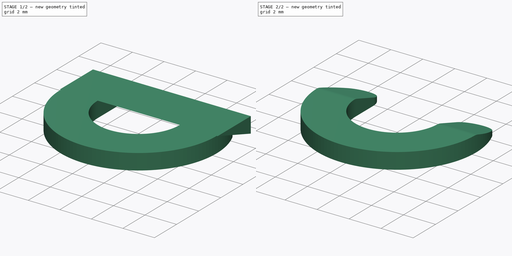
[diagram: build sequence overview — one tinted view per stage of 2, left to right]
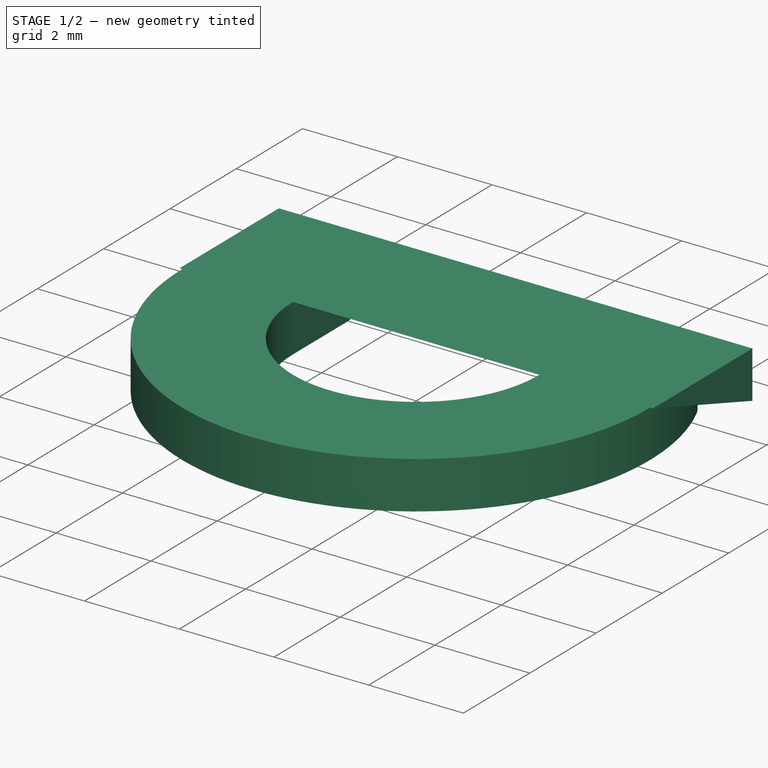
[diagram: stage 1 of 2 — iso view after this stage's code; geometry added in this stage tinted green]
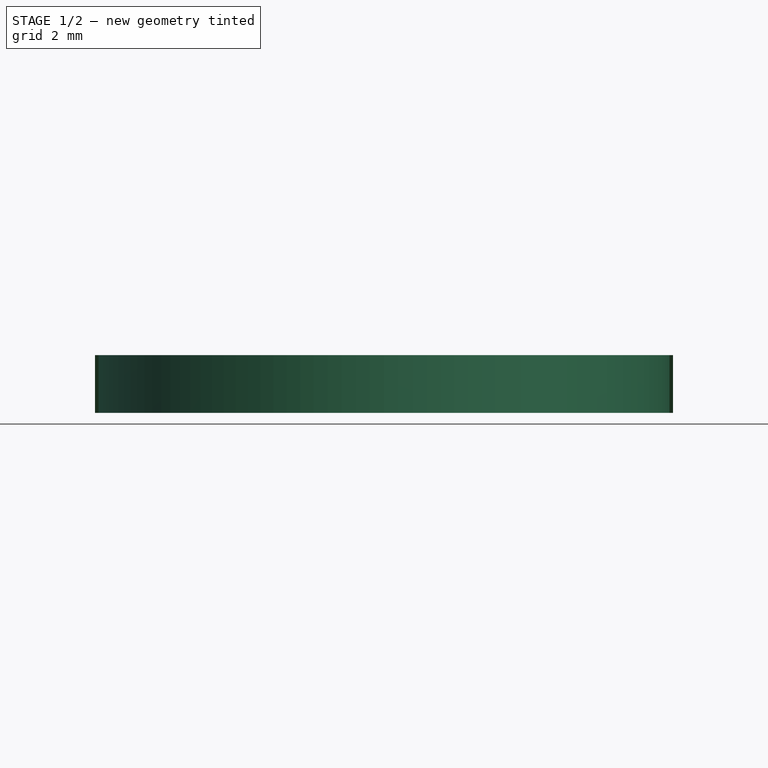
[diagram: stage 1 of 2 — front view after this stage's code; geometry added in this stage tinted green]
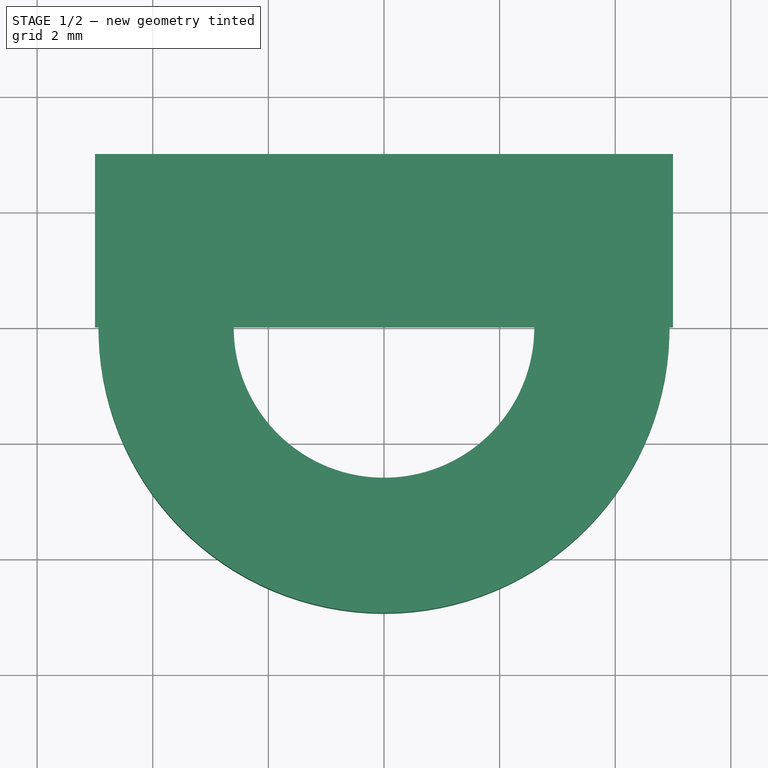
[diagram: stage 1 of 2 — top view after this stage's code; geometry added in this stage tinted green]
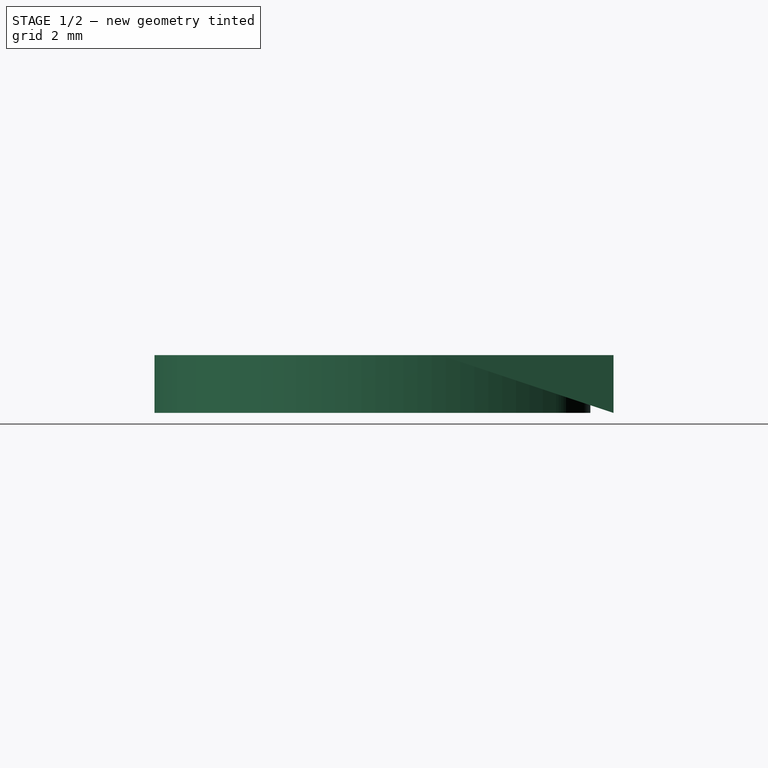
[diagram: stage 1 of 2 — right view after this stage's code; geometry added in this stage tinted green]
FCSTD DOCUMENT  (FreeCAD 0.16R6707 (Git))
Label: Bowden_Clip
License: All rights reserved
LicenseURL: http://en.wikipedia.org/wiki/All_rights_reserved
objects: Sketcher::SketchObject×2, PartDesign::Pad×2, Part::Cut×1, PartDesign::Fillet×1
note: 8 computed .brp shape members not serialized (recipe doc carries the construction recipe); baked Part::Feature solids carry a one-line shape summary decoded from their .brp

FEATURE [Sketcher::SketchObject] Sketch
  sketch-geometry (7):
    g0: ArcOfCircle CenterX=0 CenterY=0 CenterZ=0 NormalX=0 NormalY=0 NormalZ=1 Radius=4.93954 StartAngle=2.72337 EndAngle=6.70141
    g1: ArcOfCircle CenterX=0 CenterY=0 CenterZ=0 NormalX=0 NormalY=0 NormalZ=1 Radius=2.6 StartAngle=3.14159 EndAngle=6.28319
    g2: LineSegment StartX=-2.6 StartY=1.6 StartZ=0 EndX=-2.6 EndY=-3.3983e-08 EndZ=0
    g3: LineSegment StartX=2.6 StartY=1.60001 StartZ=0 EndX=2.6 EndY=-1.0542e-08 EndZ=0
    g4: ArcOfCircle CenterX=-3.6 CenterY=1.6 CenterZ=0 NormalX=0 NormalY=0 NormalZ=1 Radius=1 StartAngle=6.28318 EndAngle=9.00655
    g5: ArcOfCircle CenterX=3.6 CenterY=1.6 CenterZ=0 NormalX=0 NormalY=0 NormalZ=1 Radius=1 StartAngle=0.418232 EndAngle=3.14159
    g6: LineSegment [constr] StartX=-8 StartY=2.6 StartZ=0 EndX=8 EndY=2.6 EndZ=0
  constraints (23):
    c: Coincident(g0,g-1)
    c: Coincident(g1,g-1)
    c: Coincident(g2,g1)
    c: Coincident(g3,g1)
    c: Tangent(g3,g1)
    c: Tangent(g2,g1)
    c: Radius(g1) = 2.6
    c: Vertical(g3)
    c: Vertical(g2)
    c: Coincident(g4,g0)
    c: Coincident(g2,g4)
    c: Tangent(g2,g4)
    c: Tangent(g0,g4)
    c: Coincident(g0,g5)
    c: Tangent(g0,g5)
    c: Coincident(g3,g5)
    c: Tangent(g3,g5)
    c: Equal(g5,g4)
    c: Radius(g4) = 1
    c: Symmetric(g6,g6,g-2)
    c: DistanceX(g6,g6) = 16
    c: DistanceY(g-1,g6) = 2.6
    c: Tangent(g5,g6)
FEATURE [PartDesign::Pad] Pad
  Length = 1
  Length2 = 100
  Sketch = -> Sketch
  Type = 0
FEATURE [Sketcher::SketchObject] Sketch001
  Placement = pos=(0,0,0) rot=(0.57735,0.57735,0.57735;2.0944rad)
  sketch-geometry (3):
    g0: LineSegment StartX=0 StartY=1 StartZ=0 EndX=3 EndY=0 EndZ=0
    g1: LineSegment StartX=3 StartY=0 StartZ=0 EndX=3 EndY=1 EndZ=0
    g2: LineSegment StartX=3 StartY=1 StartZ=0 EndX=0 EndY=1 EndZ=0
  constraints (9):
    c: PointOnObject(g0,g-2)
    c: PointOnObject(g0,g-1)
    c: Coincident(g0,g1)
    c: Vertical(g1)
    c: Coincident(g1,g2)
    c: Coincident(g2,g0)
    c: Horizontal(g2)
    c: DistanceY(g1,g1) = 1
    c: DistanceX(g2,g2) = 3
FEATURE [PartDesign::Pad] Pad001
  Length = 10
  Length2 = 100
  Midplane = true
  Placement = pos=(0,0,0) rot=(0.57735,0.57735,0.57735;2.0944rad)
  Sketch = -> Sketch001
  Type = 0
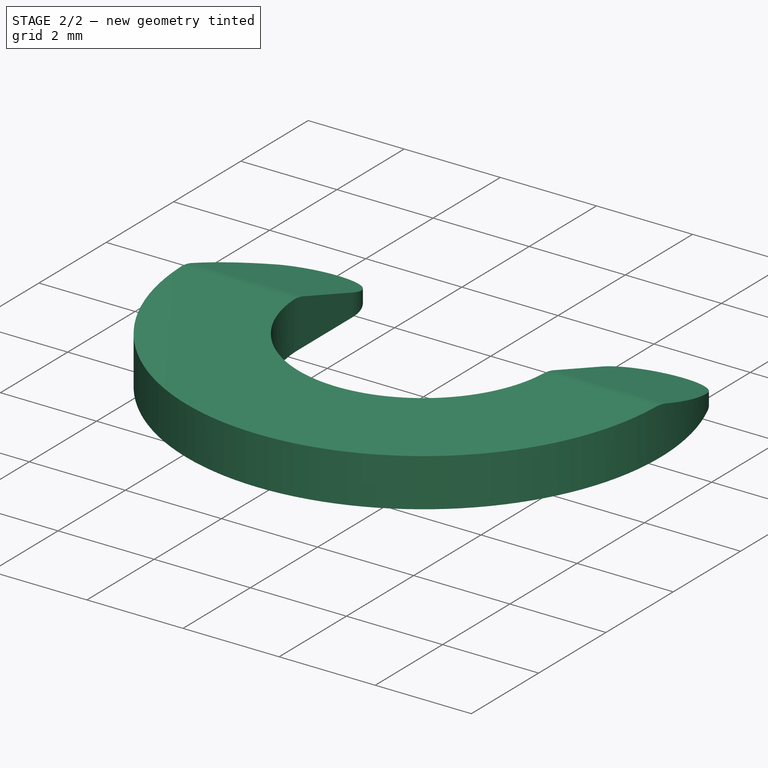
[diagram: stage 2 of 2 — iso view after this stage's code; geometry added in this stage tinted green]
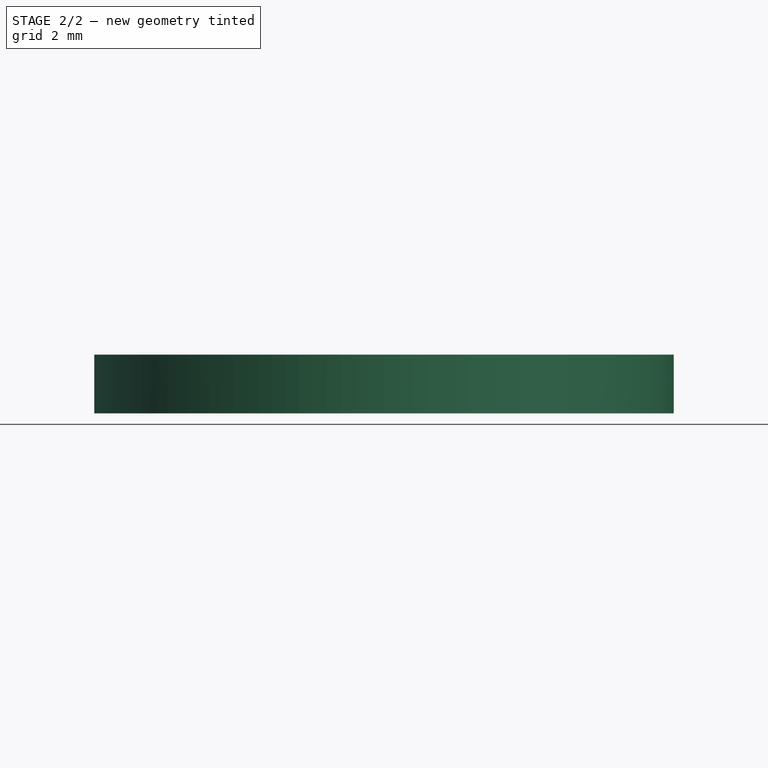
[diagram: stage 2 of 2 — front view after this stage's code; geometry added in this stage tinted green]
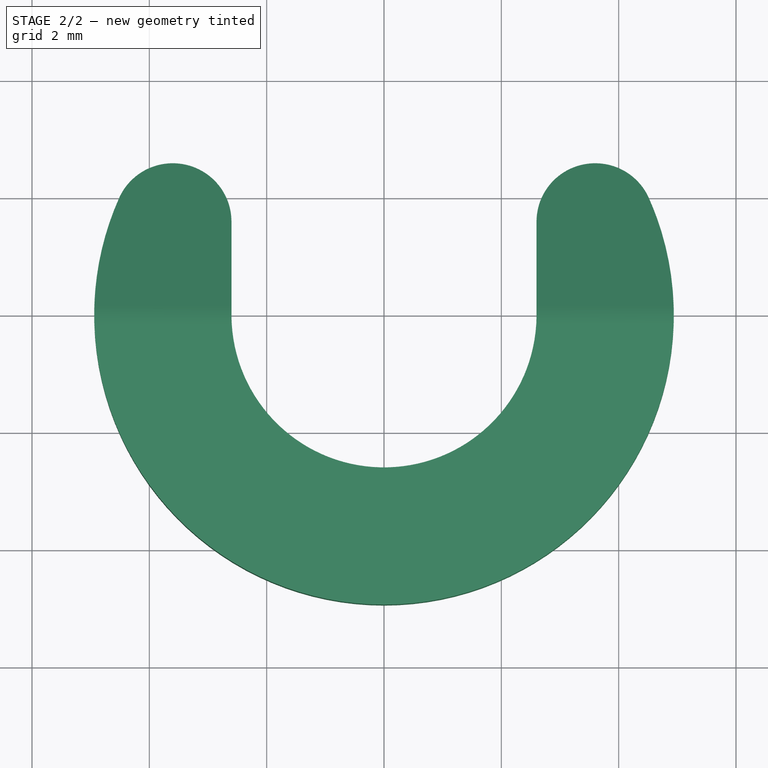
[diagram: stage 2 of 2 — top view after this stage's code; geometry added in this stage tinted green]
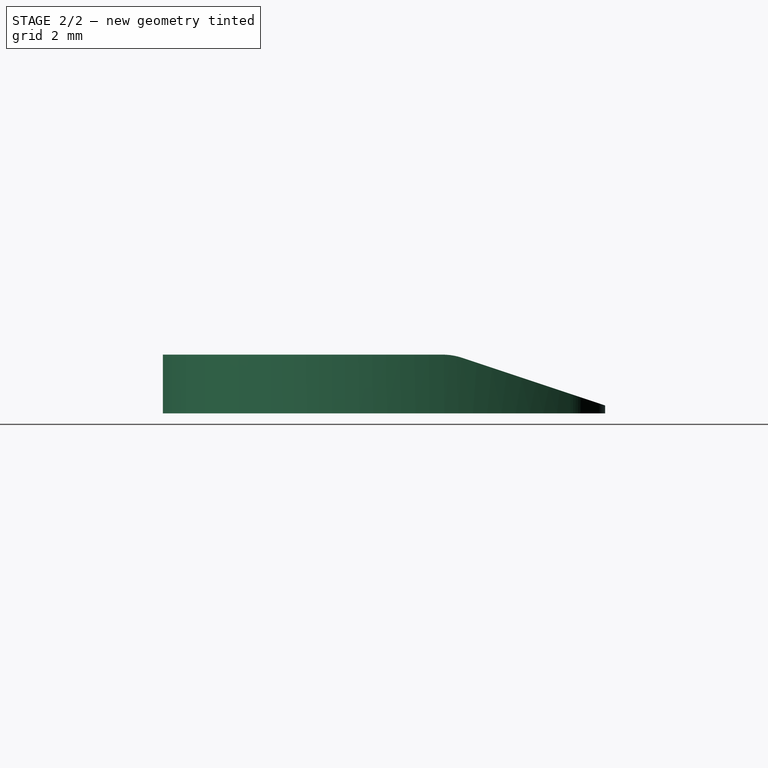
[diagram: stage 2 of 2 — right view after this stage's code; geometry added in this stage tinted green]
FEATURE [Part::Cut] Cut
  Base = -> Pad
  Tool = -> Pad001
FEATURE [PartDesign::Fillet] Fillet
  Base = -> Cut [Edge22,Edge14]
  Radius = 1
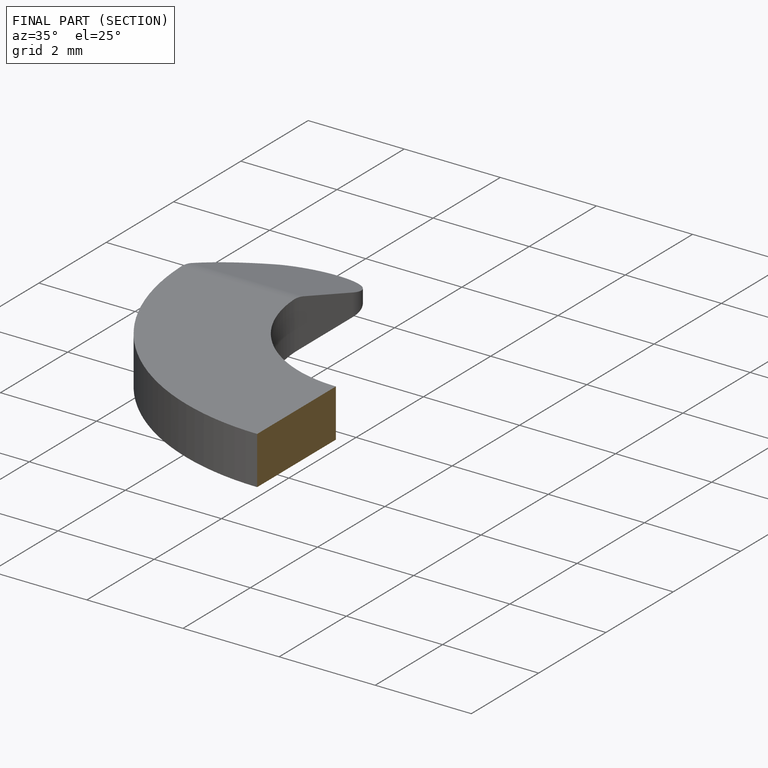
[diagram: finished part — half-section view (interior)]
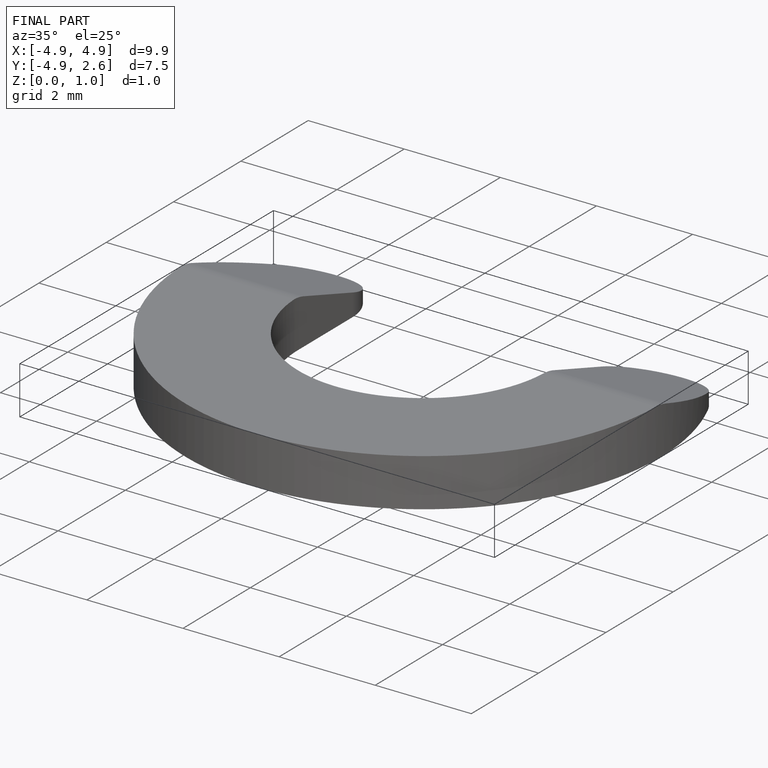
[diagram: finished part — iso view with bounding-box wireframe]
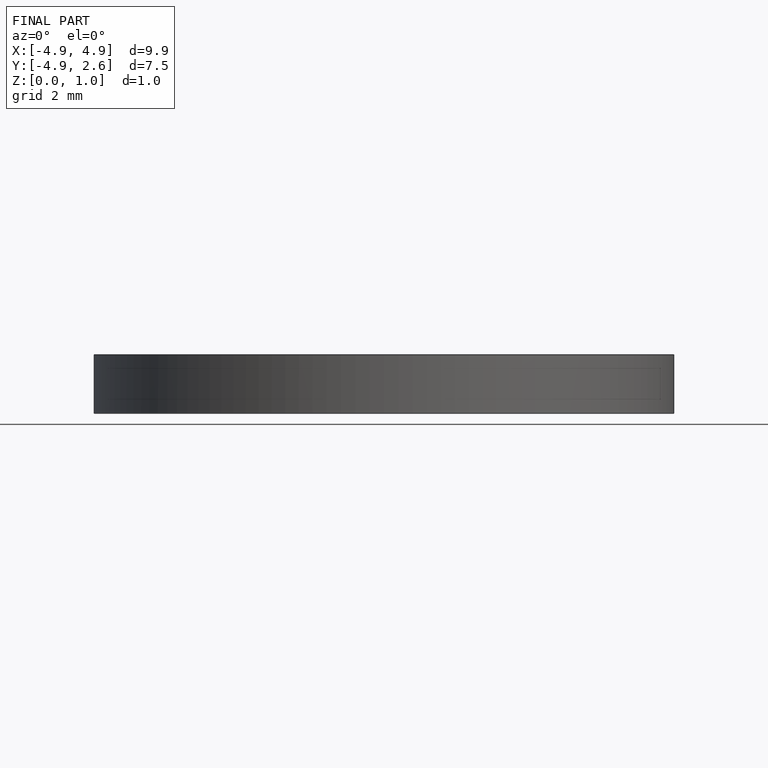
[diagram: finished part — front view with bounding-box wireframe]
